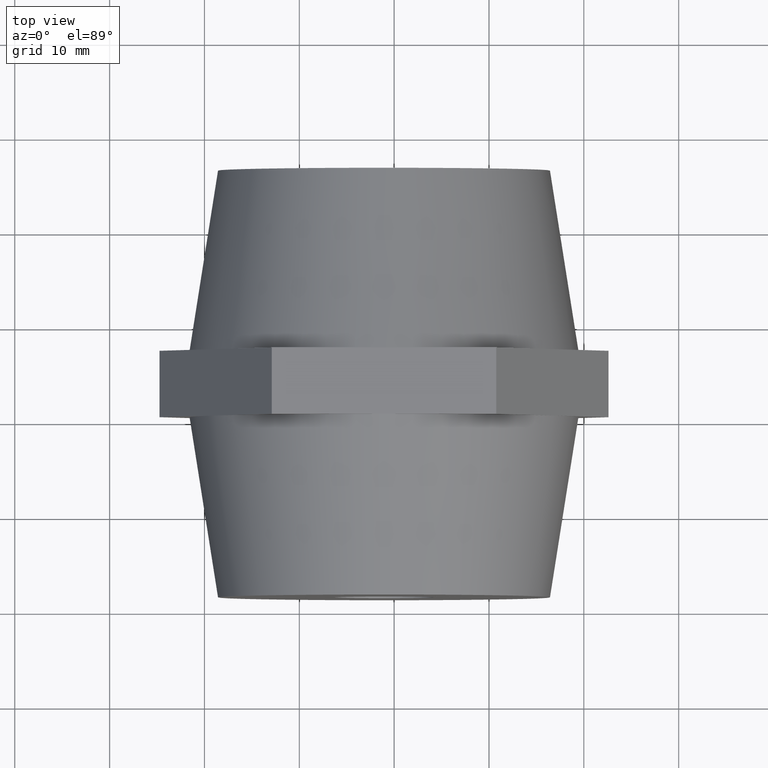
[diagram: clean part render]
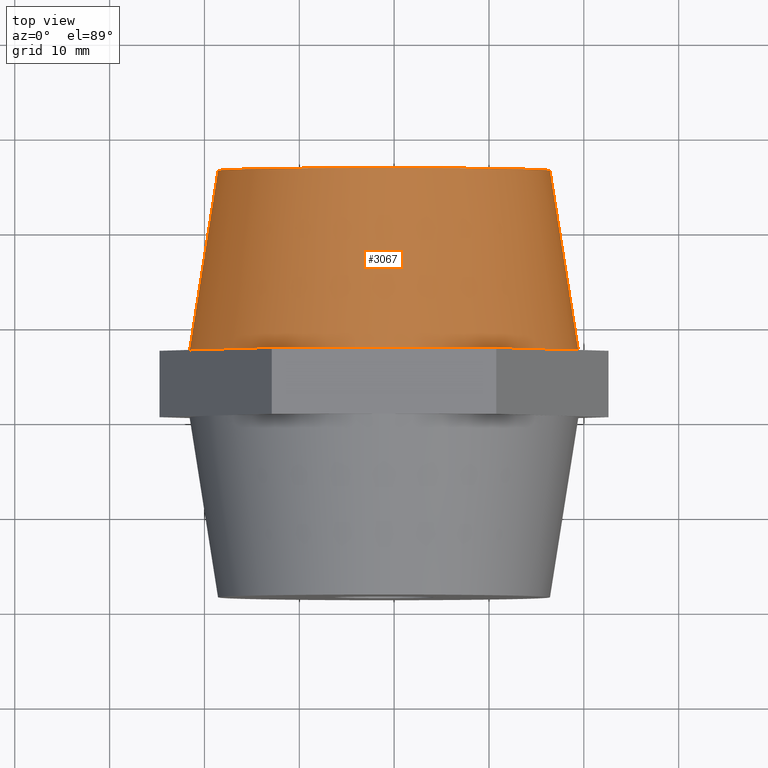
[diagram: same view with one face highlighted and labeled with its STEP entity id]
A machine part, top view. The second image highlights one B-rep face of the part: STEP entity #3067.
In plain terms, the highlighted conical surface has half-angle 8.973 deg.
Its self-contained STEP definition (entity closure, byte-faithful):
#161 = CIRCLE ( 'NONE', #475, 17.50000000000000000 ) ;
#209 = CARTESIAN_POINT ( 'NONE',  ( -17.50000000000000000, 22.49999999999999600, 2.143131898507868200E-015 ) ) ;
#227 = AXIS2_PLACEMENT_3D ( 'NONE', #3314, #542, #2993 ) ;
#353 = CONICAL_SURFACE ( 'NONE', #553, 17.50000000000000000, 0.1566018769820149100 ) ;
#364 = AXIS2_PLACEMENT_3D ( 'NONE', #2299, #3881, #2314 ) ;
#371 = EDGE_CURVE ( 'NONE', #769, #2828, #454, .T. ) ;
#415 = EDGE_CURVE ( 'NONE', #1887, #1035, #1236, .T. ) ;
#442 = ORIENTED_EDGE ( 'NONE', *, *, #1087, .T. ) ;
#454 = CIRCLE ( 'NONE', #1418, 20.50000000000000000 ) ;
#475 = AXIS2_PLACEMENT_3D ( 'NONE', #1355, #2284, #3489 ) ;
#542 = DIRECTION ( 'NONE',  ( -1.224646799147353900E-016, 1.000000000000000000, 0.0000000000000000000 ) ) ;
#553 = AXIS2_PLACEMENT_3D ( 'NONE', #1848, #2420, #1539 ) ;
#556 = ORIENTED_EDGE ( 'NONE', *, *, #642, .T. ) ;
#563 = EDGE_CURVE ( 'NONE', #3715, #958, #1025, .T. ) ;
#642 = EDGE_CURVE ( 'NONE', #958, #769, #3371, .T. ) ;
#769 = VERTEX_POINT ( 'NONE', #1251 ) ;
#923 = DIRECTION ( 'NONE',  ( -1.224646799147353900E-016, 1.000000000000000000, 0.0000000000000000000 ) ) ;
#938 = ORIENTED_EDGE ( 'NONE', *, *, #1268, .F. ) ;
#958 = VERTEX_POINT ( 'NONE', #1907 ) ;
#1025 = CIRCLE ( 'NONE', #364, 20.50000000000000000 ) ;
#1035 = VERTEX_POINT ( 'NONE', #3487 ) ;
#1087 = EDGE_CURVE ( 'NONE', #3069, #3715, #2113, .T. ) ;
#1197 = DIRECTION ( 'NONE',  ( -1.000000000000000000, -1.269309860470834500E-016, 0.0000000000000000000 ) ) ;
#1236 = LINE ( 'NONE', #1604, #3377 ) ;
#1251 = CARTESIAN_POINT ( 'NONE',  ( -3.004629197474314500E-015, 3.500000000000000000, 20.50000000000000000 ) ) ;
#1262 = ORIENTED_EDGE ( 'NONE', *, *, #3702, .T. ) ;
#1268 = EDGE_CURVE ( 'NONE', #3069, #1887, #161, .T. ) ;
#1355 = CARTESIAN_POINT ( 'NONE',  ( -2.624579619658254900E-031, 22.50000000000000000, 0.0000000000000000000 ) ) ;
#1418 = AXIS2_PLACEMENT_3D ( 'NONE', #3091, #2169, #2789 ) ;
#1503 = ORIENTED_EDGE ( 'NONE', *, *, #563, .T. ) ;
#1539 = DIRECTION ( 'NONE',  ( 1.000000000000000000, 1.982541115402065400E-016, 0.0000000000000000000 ) ) ;
#1569 = CARTESIAN_POINT ( 'NONE',  ( 17.75352077758099900, 3.500000000000000000, 10.25000000000000000 ) ) ;
#1604 = CARTESIAN_POINT ( 'NONE',  ( 17.50000000000000000, 22.50000000000000400, 0.0000000000000000000 ) ) ;
#1643 = DIRECTION ( 'NONE',  ( 0.1559625734730106000, -0.9877629653290690400, 0.0000000000000000000 ) ) ;
#1829 = CARTESIAN_POINT ( 'NONE',  ( 2.326828918379969800E-015, 3.500000000000000000, 0.0000000000000000000 ) ) ;
#1848 = CARTESIAN_POINT ( 'NONE',  ( -2.624579619658254900E-031, 22.50000000000000000, 0.0000000000000000000 ) ) ;
#1868 = ORIENTED_EDGE ( 'NONE', *, *, #371, .T. ) ;
#1887 = VERTEX_POINT ( 'NONE', #2620 ) ;
#1907 = CARTESIAN_POINT ( 'NONE',  ( -17.75352077758099900, 3.500000000000000000, 10.25000000000000000 ) ) ;
#1981 = EDGE_LOOP ( 'NONE', ( #938, #442, #1503, #556, #1868, #1262, #2945 ) ) ;
#2113 = LINE ( 'NONE', #209, #2588 ) ;
#2169 = DIRECTION ( 'NONE',  ( -1.224646799147353900E-016, 1.000000000000000000, 0.0000000000000000000 ) ) ;
#2284 = DIRECTION ( 'NONE',  ( -1.224646799147353900E-016, 1.000000000000000000, 0.0000000000000000000 ) ) ;
#2299 = CARTESIAN_POINT ( 'NONE',  ( 2.326828918379969800E-015, 3.500000000000000000, 0.0000000000000000000 ) ) ;
#2314 = DIRECTION ( 'NONE',  ( -1.000000000000000000, -1.269309860470834500E-016, 0.0000000000000000000 ) ) ;
#2337 = DIRECTION ( 'NONE',  ( -0.1559625734730103700, -0.9877629653290691500, 1.909990663905061800E-017 ) ) ;
#2420 = DIRECTION ( 'NONE',  ( 1.224646799147353900E-016, -1.000000000000000000, 0.0000000000000000000 ) ) ;
#2588 = VECTOR ( 'NONE', #2337, 1000.000000000000100 ) ;
#2620 = CARTESIAN_POINT ( 'NONE',  ( 17.50000000000000000, 22.50000000000000400, 0.0000000000000000000 ) ) ;
#2789 = DIRECTION ( 'NONE',  ( -1.000000000000000000, -1.269309860470834500E-016, 0.0000000000000000000 ) ) ;
#2828 = VERTEX_POINT ( 'NONE', #1569 ) ;
#2945 = ORIENTED_EDGE ( 'NONE', *, *, #415, .F. ) ;
#2993 = DIRECTION ( 'NONE',  ( -1.000000000000000000, -1.269309860470834500E-016, 0.0000000000000000000 ) ) ;
#3067 = ADVANCED_FACE ( 'NONE', ( #3954 ), #353, .T. ) ;
#3069 = VERTEX_POINT ( 'NONE', #3392 ) ;
#3091 = CARTESIAN_POINT ( 'NONE',  ( 2.326828918379969800E-015, 3.500000000000000000, 0.0000000000000000000 ) ) ;
#3314 = CARTESIAN_POINT ( 'NONE',  ( 2.326828918379969800E-015, 3.500000000000000000, 0.0000000000000000000 ) ) ;
#3323 = AXIS2_PLACEMENT_3D ( 'NONE', #1829, #923, #1197 ) ;
#3371 = CIRCLE ( 'NONE', #227, 20.50000000000000000 ) ;
#3377 = VECTOR ( 'NONE', #1643, 1000.000000000000200 ) ;
#3392 = CARTESIAN_POINT ( 'NONE',  ( -17.50000000000000000, 22.49999999999999600, 2.326828918379970600E-015 ) ) ;
#3487 = CARTESIAN_POINT ( 'NONE',  ( 20.49999999999999300, 3.500000000000003600, 0.0000000000000000000 ) ) ;
#3489 = DIRECTION ( 'NONE',  ( -1.000000000000000000, -1.982541115402065400E-016, 0.0000000000000000000 ) ) ;
#3650 = CARTESIAN_POINT ( 'NONE',  ( -20.49999999999998900, 3.499999999999996400, 2.510525938252073300E-015 ) ) ;
#3702 = EDGE_CURVE ( 'NONE', #2828, #1035, #3778, .T. ) ;
#3715 = VERTEX_POINT ( 'NONE', #3650 ) ;
#3778 = CIRCLE ( 'NONE', #3323, 20.50000000000000000 ) ;
#3881 = DIRECTION ( 'NONE',  ( -1.224646799147353900E-016, 1.000000000000000000, 0.0000000000000000000 ) ) ;
#3954 = FACE_OUTER_BOUND ( 'NONE', #1981, .T. ) ;